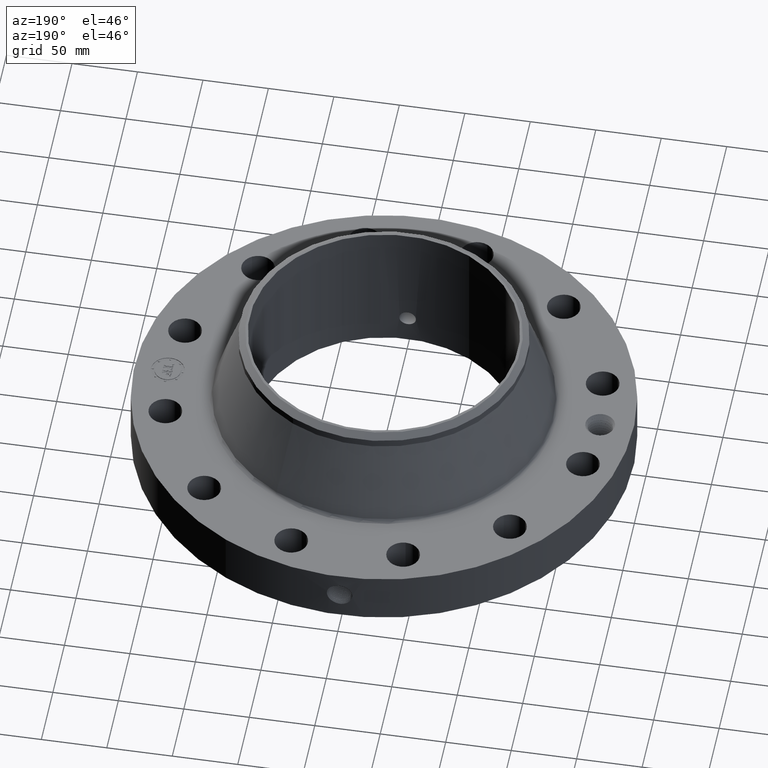
[diagram: clean part render]
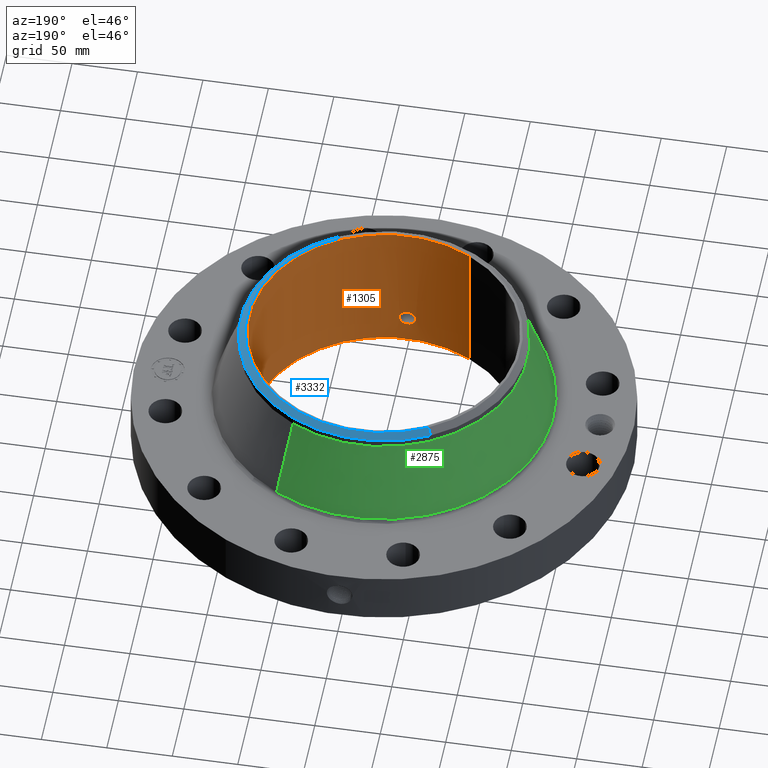
[diagram: same view with three faces highlighted in distinct colors, each labeled with its STEP entity id]
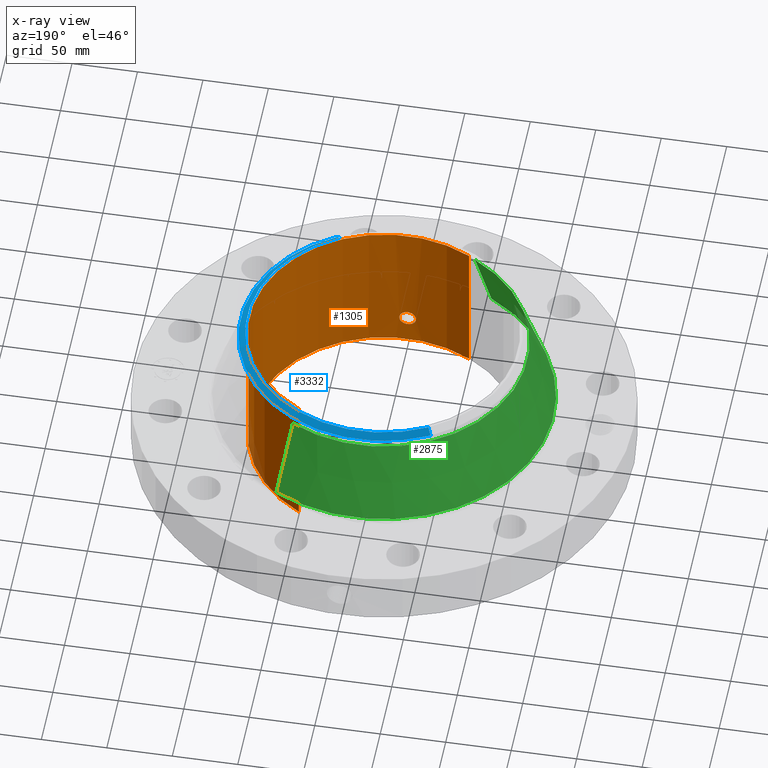
[diagram: x-ray of the same camera — body ghosted, the three highlighted faces saturated]
A machine part, auxiliary view with three faces highlighted in distinct colors.
The next image is the same camera in x-ray (body ghosted, the three faces saturated) — at least one of them is partly hidden behind the body in this view.
Their STEP definitions:

[orange] entity #1305 — the highlighted cylindrical surface (partial cylindrical patch) has radius 102.502 mm, axis along (0, 0, -1).
#214=AXIS2_PLACEMENT_3D('Circle Axis2P3D',#212,#213,$) ;
#1236=AXIS2_PLACEMENT_3D('Cylinder Axis2P3D',#1233,#1234,#1235) ;
#1240=AXIS2_PLACEMENT_3D('Circle Axis2P3D',#1238,#1239,$) ;
#212=CARTESIAN_POINT('Axis2P3D Location',(0.,0.,0.0600000000002)) ;
#216=CARTESIAN_POINT('Vertex',(1.93472176105,3.54148442852,0.0600000000002)) ;
#218=CARTESIAN_POINT('Vertex',(-1.93472176105,-3.54148442852,0.0600000000002)) ;
#1233=CARTESIAN_POINT('Axis2P3D Location',(0.,0.,2.25000000001)) ;
#1238=CARTESIAN_POINT('Axis2P3D Location',(0.,0.,4.44000000002)) ;
#1242=CARTESIAN_POINT('Vertex',(1.93472176104,3.54148442852,4.44000000002)) ;
#1244=CARTESIAN_POINT('Vertex',(-1.93472176105,-3.54148442852,4.44000000002)) ;
#1247=CARTESIAN_POINT('Line Origine',(1.93472176105,3.54148442852,2.25000000001)) ;
#1252=CARTESIAN_POINT('Line Origine',(-1.93472176105,-3.54148442852,2.25000000001)) ;
#1264=CARTESIAN_POINT('Control Point',(0.219395640473,-4.02953171015,0.820143615352)) ;
#1265=CARTESIAN_POINT('Control Point',(0.206921897864,-4.03021086717,0.797310582661)) ;
#1266=CARTESIAN_POINT('Control Point',(0.191479220622,-4.03100326363,0.776102876088)) ;
#1267=CARTESIAN_POINT('Control Point',(0.173347707615,-4.03184763012,0.757032559604)) ;
#1268=CARTESIAN_POINT('Control Point',(0.11215413099,-4.03428922436,0.707563272391)) ;
#1269=CARTESIAN_POINT('Control Point',(0.035012342596,-4.03587551204,0.684033652997)) ;
#1270=CARTESIAN_POINT('Control Point',(-0.0195280778163,-4.03599449568,0.682387726135)) ;
#1271=CARTESIAN_POINT('Control Point',(-0.124103877773,-4.03424989946,0.707513487186)) ;
#1272=CARTESIAN_POINT('Control Point',(-0.203143045249,-4.03063623122,0.780387428618)) ;
#1273=CARTESIAN_POINT('Control Point',(-0.232130154649,-4.02885574927,0.826580972745)) ;
#1274=CARTESIAN_POINT('Control Point',(-0.255826961307,-4.02738808668,0.904745467073)) ;
#1275=CARTESIAN_POINT('Control Point',(-0.248306737167,-4.02785344579,0.984154788802)) ;
#1276=CARTESIAN_POINT('Control Point',(-0.242072390419,-4.02824497786,1.01075568368)) ;
#1277=CARTESIAN_POINT('Control Point',(-0.232330199652,-4.02882746308,1.03617983289)) ;
#1278=CARTESIAN_POINT('Control Point',(-0.219395640473,-4.02953171015,1.05985638466)) ;
#1279=CARTESIAN_POINT('Vertex',(0.219395640473,-4.02953171015,0.820143615352)) ;
#1281=CARTESIAN_POINT('Vertex',(-0.219395640473,-4.02953171015,1.05985638466)) ;
#1285=CARTESIAN_POINT('Control Point',(-0.219395640473,-4.02953171015,1.05985638466)) ;
#1286=CARTESIAN_POINT('Control Point',(-0.206921897861,-4.03021086717,1.08268941735)) ;
#1287=CARTESIAN_POINT('Control Point',(-0.191479220615,-4.03100326363,1.10389712393)) ;
#1288=CARTESIAN_POINT('Control Point',(-0.173347707624,-4.03184763012,1.1229674404)) ;
#1289=CARTESIAN_POINT('Control Point',(-0.112154130994,-4.03428922436,1.17243672762)) ;
#1290=CARTESIAN_POINT('Control Point',(-0.035012342591,-4.03587551204,1.19596634701)) ;
#1291=CARTESIAN_POINT('Control Point',(0.0195280778107,-4.03599449568,1.19761227387)) ;
#1292=CARTESIAN_POINT('Control Point',(0.124103877771,-4.03424989946,1.17248651282)) ;
#1293=CARTESIAN_POINT('Control Point',(0.203143045249,-4.03063623122,1.09961257139)) ;
#1294=CARTESIAN_POINT('Control Point',(0.232130154649,-4.02885574927,1.05341902726)) ;
#1295=CARTESIAN_POINT('Control Point',(0.255826961307,-4.02738808668,0.975254532935)) ;
#1296=CARTESIAN_POINT('Control Point',(0.248306737168,-4.02785344579,0.895845211206)) ;
#1297=CARTESIAN_POINT('Control Point',(0.242072390418,-4.02824497786,0.869244316331)) ;
#1298=CARTESIAN_POINT('Control Point',(0.232330199652,-4.02882746308,0.843820167115)) ;
#1299=CARTESIAN_POINT('Control Point',(0.219395640473,-4.02953171015,0.820143615352)) ;
#213=DIRECTION('Axis2P3D Direction',(0.,0.,-0.0393700787402)) ;
#1234=DIRECTION('Axis2P3D Direction',(0.,0.,-0.0393700787402)) ;
#1235=DIRECTION('Axis2P3D XDirection',(-0.0188750212049,-0.0345504945626,0.)) ;
#1239=DIRECTION('Axis2P3D Direction',(0.,0.,-0.0393700787402)) ;
#1248=DIRECTION('Vector Direction',(0.,0.,-0.0393700787402)) ;
#1253=DIRECTION('Vector Direction',(0.,0.,-0.0393700787402)) ;
#1249=VECTOR('Line Direction',#1248,0.0393700787402) ;
#1254=VECTOR('Line Direction',#1253,0.0393700787402) ;
#1258=ORIENTED_EDGE('',*,*,#1246,.F.) ;
#1259=ORIENTED_EDGE('',*,*,#1251,.T.) ;
#1260=ORIENTED_EDGE('',*,*,#220,.T.) ;
#1261=ORIENTED_EDGE('',*,*,#1256,.F.) ;
#1302=ORIENTED_EDGE('',*,*,#1283,.F.) ;
#1303=ORIENTED_EDGE('',*,*,#1300,.F.) ;
#1304=FACE_BOUND('',#1301,.T.) ;
#1305=ADVANCED_FACE('PartBody',(#1262,#1304),#1237,.F.) ;
#1263=B_SPLINE_CURVE_WITH_KNOTS('',5,(#1264,#1265,#1266,#1267,#1268,#1269,#1270,#1271,#1272,#1273,#1274,#1275,#1276,#1277,#1278),.UNSPECIFIED.,.F.,.U.,(6,3,3,3,6),(0.,4.67457617893,14.0214890675,23.3714411478,28.2187098557),.UNSPECIFIED.) ;
#1284=B_SPLINE_CURVE_WITH_KNOTS('',5,(#1285,#1286,#1287,#1288,#1289,#1290,#1291,#1292,#1293,#1294,#1295,#1296,#1297,#1298,#1299),.UNSPECIFIED.,.F.,.U.,(6,3,3,3,6),(0.,4.67457617994,14.021489069,23.3714411494,28.2187098571),.UNSPECIFIED.) ;
#215=CIRCLE('generated circle',#214,4.03550000002) ;
#1241=CIRCLE('generated circle',#1240,4.03550000002) ;
#1237=CYLINDRICAL_SURFACE('generated cylinder',#1236,4.03550000002) ;
#220=EDGE_CURVE('',#217,#219,#215,.T.) ;
#1246=EDGE_CURVE('',#1243,#1245,#1241,.T.) ;
#1251=EDGE_CURVE('',#1243,#217,#1250,.T.) ;
#1256=EDGE_CURVE('',#1245,#219,#1255,.T.) ;
#1283=EDGE_CURVE('',#1280,#1282,#1263,.T.) ;
#1300=EDGE_CURVE('',#1282,#1280,#1284,.T.) ;
#1257=EDGE_LOOP('',(#1258,#1259,#1260,#1261)) ;
#1301=EDGE_LOOP('',(#1302,#1303)) ;
#1262=FACE_OUTER_BOUND('',#1257,.T.) ;
#1250=LINE('Line',#1247,#1249) ;
#1255=LINE('Line',#1252,#1254) ;
#217=VERTEX_POINT('',#216) ;
#219=VERTEX_POINT('',#218) ;
#1243=VERTEX_POINT('',#1242) ;
#1245=VERTEX_POINT('',#1244) ;
#1280=VERTEX_POINT('',#1279) ;
#1282=VERTEX_POINT('',#1281) ;

[blue] entity #3332 — the highlighted conical surface has half-angle 52.5 deg.
#2492=AXIS2_PLACEMENT_3D('Circle Axis2P3D',#2490,#2491,$) ;
#3277=AXIS2_PLACEMENT_3D('Cone Axis2P3D',#3274,#3275,#3276) ;
#3315=AXIS2_PLACEMENT_3D('Circle Axis2P3D',#3313,#3314,$) ;
#3322=AXIS2_PLACEMENT_3D('Circle Axis2P3D',#3320,#3321,$) ;
#2490=CARTESIAN_POINT('Axis2P3D Location',(0.,0.,4.44000000002)) ;
#2494=CARTESIAN_POINT('Vertex',(1.97247180345,-3.61058541765,4.44000000002)) ;
#2496=CARTESIAN_POINT('Vertex',(-1.97247180345,3.61058541765,4.44000000002)) ;
#3274=CARTESIAN_POINT('Axis2P3D Location',(0.,0.,4.44000000002)) ;
#3279=CARTESIAN_POINT('Line Origine',(2.02059650127,-3.69867708611,4.36297577738)) ;
#3283=CARTESIAN_POINT('Vertex',(2.06872119909,-3.78676875457,4.28595155475)) ;
#3286=CARTESIAN_POINT('Line Origine',(-2.02059650127,3.69867708611,4.36297577738)) ;
#3290=CARTESIAN_POINT('Vertex',(-2.06872119909,3.78676875457,4.28595155475)) ;
#3313=CARTESIAN_POINT('Axis2P3D Location',(0.,0.,4.28595155475)) ;
#3317=CARTESIAN_POINT('Vertex',(2.06872119909,3.78676875457,4.28595155475)) ;
#3320=CARTESIAN_POINT('Axis2P3D Location',(0.,0.,4.28595155475)) ;
#2491=DIRECTION('Axis2P3D Direction',(0.,0.,-0.0393700787402)) ;
#3275=DIRECTION('Axis2P3D Direction',(-0.,-0.,-0.0393700787402)) ;
#3276=DIRECTION('Axis2P3D XDirection',(-0.0188750212049,0.0345504945626,0.)) ;
#3280=DIRECTION('Vector Direction',(0.014974561121,-0.02741075027,-0.023966985394)) ;
#3287=DIRECTION('Vector Direction',(-0.014974561121,0.02741075027,-0.023966985394)) ;
#3314=DIRECTION('Axis2P3D Direction',(0.,0.,-0.0393700787402)) ;
#3321=DIRECTION('Axis2P3D Direction',(0.,0.,-0.0393700787402)) ;
#3281=VECTOR('Line Direction',#3280,0.0393700787402) ;
#3288=VECTOR('Line Direction',#3287,0.0393700787402) ;
#3326=ORIENTED_EDGE('',*,*,#3292,.F.) ;
#3327=ORIENTED_EDGE('',*,*,#2498,.F.) ;
#3328=ORIENTED_EDGE('',*,*,#3285,.T.) ;
#3329=ORIENTED_EDGE('',*,*,#3319,.T.) ;
#3330=ORIENTED_EDGE('',*,*,#3324,.F.) ;
#3332=ADVANCED_FACE('PartBody',(#3331),#3278,.T.) ;
#2493=CIRCLE('generated circle',#2492,4.1142401575) ;
#3316=CIRCLE('generated circle',#3315,4.31500000002) ;
#3323=CIRCLE('generated circle',#3322,4.31500000002) ;
#3278=CONICAL_SURFACE('Cone',#3277,4.1142401575,0.916297857297) ;
#2498=EDGE_CURVE('',#2495,#2497,#2493,.F.) ;
#3285=EDGE_CURVE('',#2495,#3284,#3282,.T.) ;
#3292=EDGE_CURVE('',#2497,#3291,#3289,.T.) ;
#3319=EDGE_CURVE('',#3284,#3318,#3316,.F.) ;
#3324=EDGE_CURVE('',#3291,#3318,#3323,.T.) ;
#3325=EDGE_LOOP('',(#3326,#3327,#3328,#3329,#3330)) ;
#3331=FACE_OUTER_BOUND('',#3325,.T.) ;
#3282=LINE('Line',#3279,#3281) ;
#3289=LINE('Line',#3286,#3288) ;
#2495=VERTEX_POINT('',#2494) ;
#2497=VERTEX_POINT('',#2496) ;
#3284=VERTEX_POINT('',#3283) ;
#3291=VERTEX_POINT('',#3290) ;
#3318=VERTEX_POINT('',#3317) ;

[green] entity #2875 — the highlighted conical surface has half-angle 18.871 deg.
#2120=AXIS2_PLACEMENT_3D('Circle Axis2P3D',#2118,#2119,$) ;
#2836=AXIS2_PLACEMENT_3D('Cone Axis2P3D',#2833,#2834,#2835) ;
#2866=AXIS2_PLACEMENT_3D('Circle Axis2P3D',#2864,#2865,$) ;
#2096=CARTESIAN_POINT('Vertex',(2.44375147146,4.47325706343,1.76118739904)) ;
#2103=CARTESIAN_POINT('Vertex',(-2.44375147146,-4.47325706343,1.76118739904)) ;
#2118=CARTESIAN_POINT('Axis2P3D Location',(0.,0.,1.76118739904)) ;
#2833=CARTESIAN_POINT('Axis2P3D Location',(0.,0.,4.04973108231)) ;
#2838=CARTESIAN_POINT('Line Origine',(2.25623633527,4.130012909,2.90545924067)) ;
#2842=CARTESIAN_POINT('Vertex',(2.06872119909,3.78676875457,4.04973108231)) ;
#2849=CARTESIAN_POINT('Vertex',(-2.06872119909,-3.78676875457,4.04973108231)) ;
#2852=CARTESIAN_POINT('Line Origine',(-2.25623633527,-4.130012909,2.90545924067)) ;
#2864=CARTESIAN_POINT('Axis2P3D Location',(0.,0.,4.04973108231)) ;
#2119=DIRECTION('Axis2P3D Direction',(0.,0.,-0.0393700787402)) ;
#2834=DIRECTION('Axis2P3D Direction',(0.,0.,-0.0393700787402)) ;
#2835=DIRECTION('Axis2P3D XDirection',(-0.0188750212049,-0.0345504945626,0.)) ;
#2839=DIRECTION('Vector Direction',(0.00610490555274,0.0111749546565,-0.0372539074007)) ;
#2853=DIRECTION('Vector Direction',(-0.00610490555274,-0.0111749546565,-0.0372539074007)) ;
#2865=DIRECTION('Axis2P3D Direction',(0.,0.,-0.0393700787402)) ;
#2840=VECTOR('Line Direction',#2839,0.0393700787402) ;
#2854=VECTOR('Line Direction',#2853,0.0393700787402) ;
#2870=ORIENTED_EDGE('',*,*,#2122,.F.) ;
#2871=ORIENTED_EDGE('',*,*,#2856,.T.) ;
#2872=ORIENTED_EDGE('',*,*,#2868,.T.) ;
#2873=ORIENTED_EDGE('',*,*,#2844,.F.) ;
#2875=ADVANCED_FACE('PartBody',(#2874),#2837,.T.) ;
#2121=CIRCLE('generated circle',#2120,5.09724925914) ;
#2867=CIRCLE('generated circle',#2866,4.31500000002) ;
#2837=CONICAL_SURFACE('Cone',#2836,4.31500000002,0.329360894527) ;
#2122=EDGE_CURVE('',#2104,#2097,#2121,.T.) ;
#2844=EDGE_CURVE('',#2097,#2843,#2841,.F.) ;
#2856=EDGE_CURVE('',#2104,#2850,#2855,.F.) ;
#2868=EDGE_CURVE('',#2850,#2843,#2867,.T.) ;
#2869=EDGE_LOOP('',(#2870,#2871,#2872,#2873)) ;
#2874=FACE_OUTER_BOUND('',#2869,.T.) ;
#2841=LINE('Line',#2838,#2840) ;
#2855=LINE('Line',#2852,#2854) ;
#2097=VERTEX_POINT('',#2096) ;
#2104=VERTEX_POINT('',#2103) ;
#2843=VERTEX_POINT('',#2842) ;
#2850=VERTEX_POINT('',#2849) ;